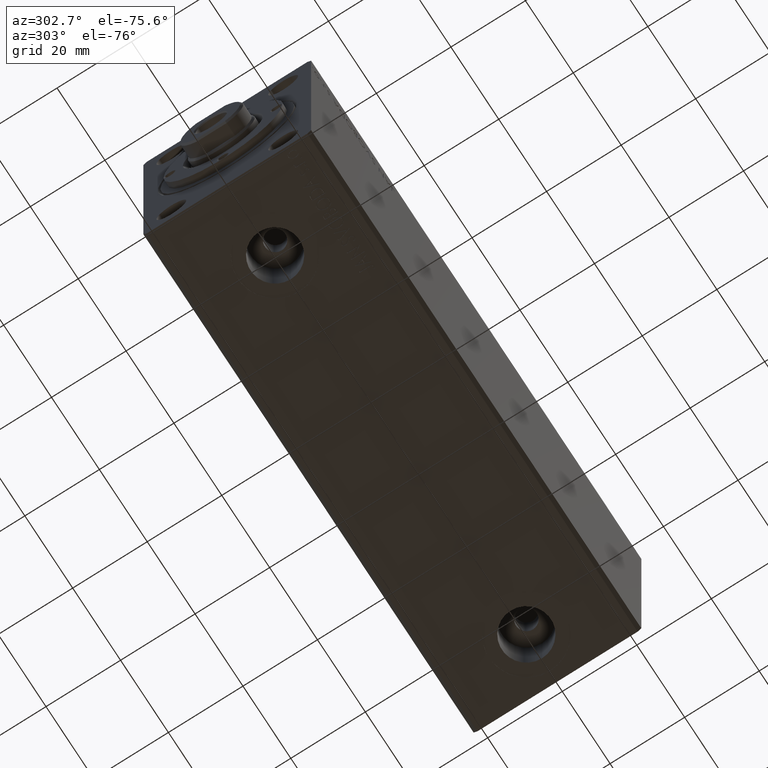
[diagram: clean part render]
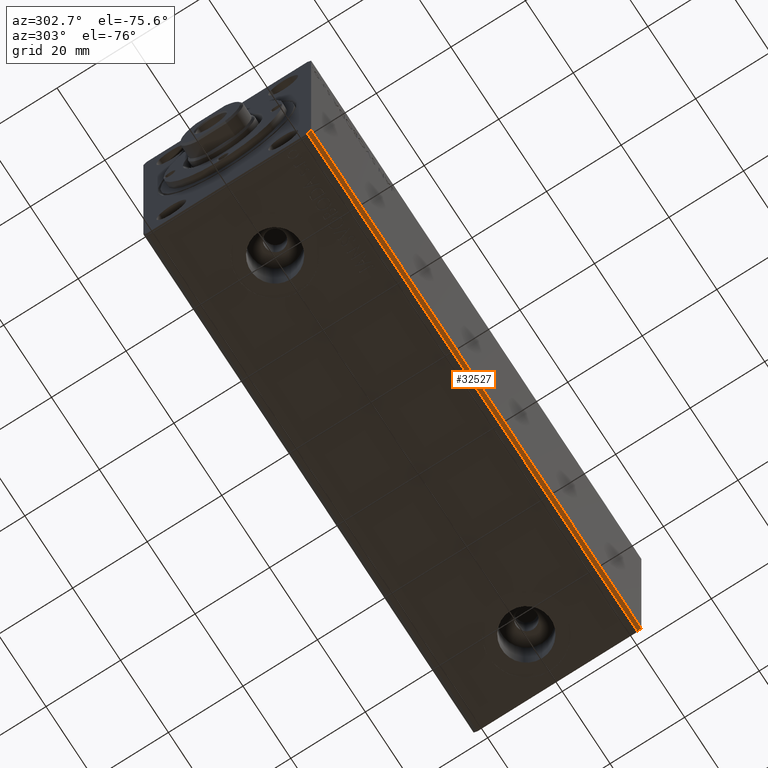
[diagram: same view with one face highlighted and labeled with its STEP entity id]
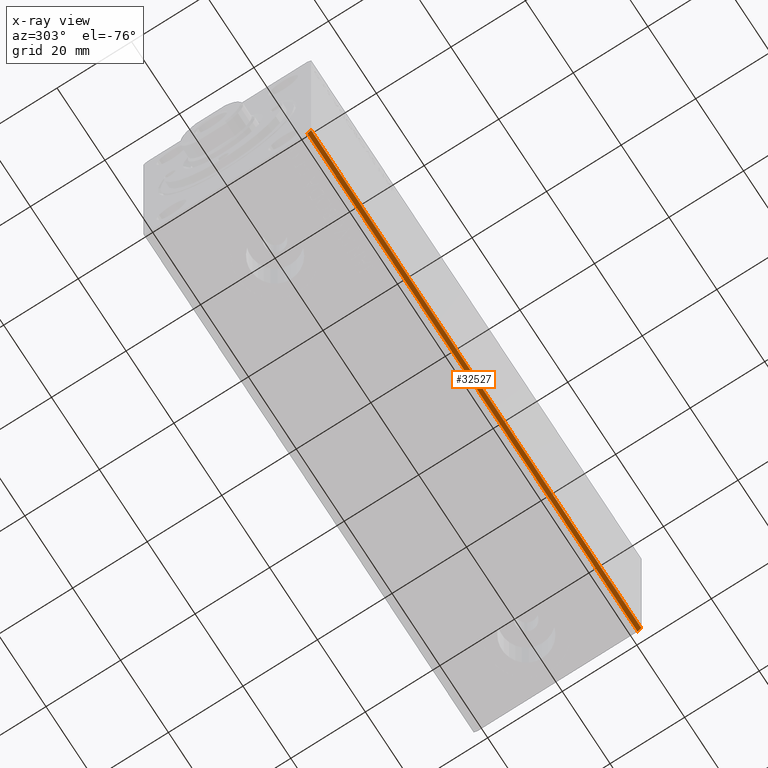
[diagram: x-ray of the same camera — body ghosted, the highlighted face saturated]
A machine part, auxiliary view. The second image highlights one B-rep face of the part: STEP entity #32527.
The next image is the same camera in x-ray: the body ghosted, the highlighted face saturated — about 0% of this face is hidden behind the body in this view.
In plain terms, the highlighted planar face has unit normal (0, 0.7071, 0.7071).
Its self-contained STEP definition (entity closure, byte-faithful):
#417 = CARTESIAN_POINT ( 'NONE',  ( 0.000000000000000000, -21.50000000000001776, -32.50000000000000711 ) ) ;
#2138 = AXIS2_PLACEMENT_3D ( 'NONE', #33898, #3326, #24738 ) ;
#2324 = CARTESIAN_POINT ( 'NONE',  ( 138.0000000000000000, -22.50000000000001421, -31.50000000000000711 ) ) ;
#2561 = DIRECTION ( 'NONE',  ( -1.000000000000000000, -0.000000000000000000, -0.000000000000000000 ) ) ;
#3326 = DIRECTION ( 'NONE',  ( -0.000000000000000000, 0.7071067811865500152, 0.7071067811865451302 ) ) ;
#5077 = VECTOR ( 'NONE', #21630, 1000.000000000000000 ) ;
#7733 = DIRECTION ( 'NONE',  ( 0.000000000000000000, 0.7071067811865451302, -0.7071067811865500152 ) ) ;
#8519 = EDGE_CURVE ( 'NONE', #42809, #25645, #11523, .T. ) ;
#8986 = VECTOR ( 'NONE', #39118, 1000.000000000000114 ) ;
#10028 = PLANE ( 'NONE',  #2138 ) ;
#10431 = ORIENTED_EDGE ( 'NONE', *, *, #8519, .F. ) ;
#11523 = LINE ( 'NONE', #31822, #11839 ) ;
#11839 = VECTOR ( 'NONE', #7733, 1000.000000000000114 ) ;
#11884 = CARTESIAN_POINT ( 'NONE',  ( 0.000000000000000000, -22.50000000000001421, -31.50000000000000711 ) ) ;
#12703 = ORIENTED_EDGE ( 'NONE', *, *, #25403, .T. ) ;
#18566 = LINE ( 'NONE', #11884, #8986 ) ;
#18643 = CARTESIAN_POINT ( 'NONE',  ( 0.000000000000000000, -22.50000000000001421, -31.50000000000000711 ) ) ;
#21630 = DIRECTION ( 'NONE',  ( -1.000000000000000000, -0.000000000000000000, -0.000000000000000000 ) ) ;
#21855 = CARTESIAN_POINT ( 'NONE',  ( 138.0000000000000000, -22.50000000000001421, -31.50000000000000711 ) ) ;
#22907 = ORIENTED_EDGE ( 'NONE', *, *, #24023, .F. ) ;
#23396 = EDGE_LOOP ( 'NONE', ( #37913, #22907, #10431, #12703 ) ) ;
#23444 = VECTOR ( 'NONE', #2561, 1000.000000000000000 ) ;
#24023 = EDGE_CURVE ( 'NONE', #25645, #43835, #39839, .T. ) ;
#24738 = DIRECTION ( 'NONE',  ( 0.000000000000000000, -0.7071067811865451302, 0.7071067811865500152 ) ) ;
#25403 = EDGE_CURVE ( 'NONE', #42809, #30749, #28771, .T. ) ;
#25645 = VERTEX_POINT ( 'NONE', #35425 ) ;
#26865 = CARTESIAN_POINT ( 'NONE',  ( 138.0000000000000000, -21.50000000000001776, -32.50000000000000711 ) ) ;
#28415 = EDGE_CURVE ( 'NONE', #30749, #43835, #18566, .T. ) ;
#28771 = LINE ( 'NONE', #21855, #5077 ) ;
#30749 = VERTEX_POINT ( 'NONE', #18643 ) ;
#31822 = CARTESIAN_POINT ( 'NONE',  ( 138.0000000000000000, -22.50000000000001421, -31.50000000000000711 ) ) ;
#32527 = ADVANCED_FACE ( 'NONE', ( #40606 ), #10028, .F. ) ;
#33898 = CARTESIAN_POINT ( 'NONE',  ( 138.0000000000000000, -22.50000000000001421, -31.50000000000000711 ) ) ;
#35425 = CARTESIAN_POINT ( 'NONE',  ( 138.0000000000000000, -21.50000000000001776, -32.50000000000000711 ) ) ;
#37913 = ORIENTED_EDGE ( 'NONE', *, *, #28415, .T. ) ;
#39118 = DIRECTION ( 'NONE',  ( 0.000000000000000000, 0.7071067811865451302, -0.7071067811865500152 ) ) ;
#39839 = LINE ( 'NONE', #26865, #23444 ) ;
#40606 = FACE_OUTER_BOUND ( 'NONE', #23396, .T. ) ;
#42809 = VERTEX_POINT ( 'NONE', #2324 ) ;
#43835 = VERTEX_POINT ( 'NONE', #417 ) ;